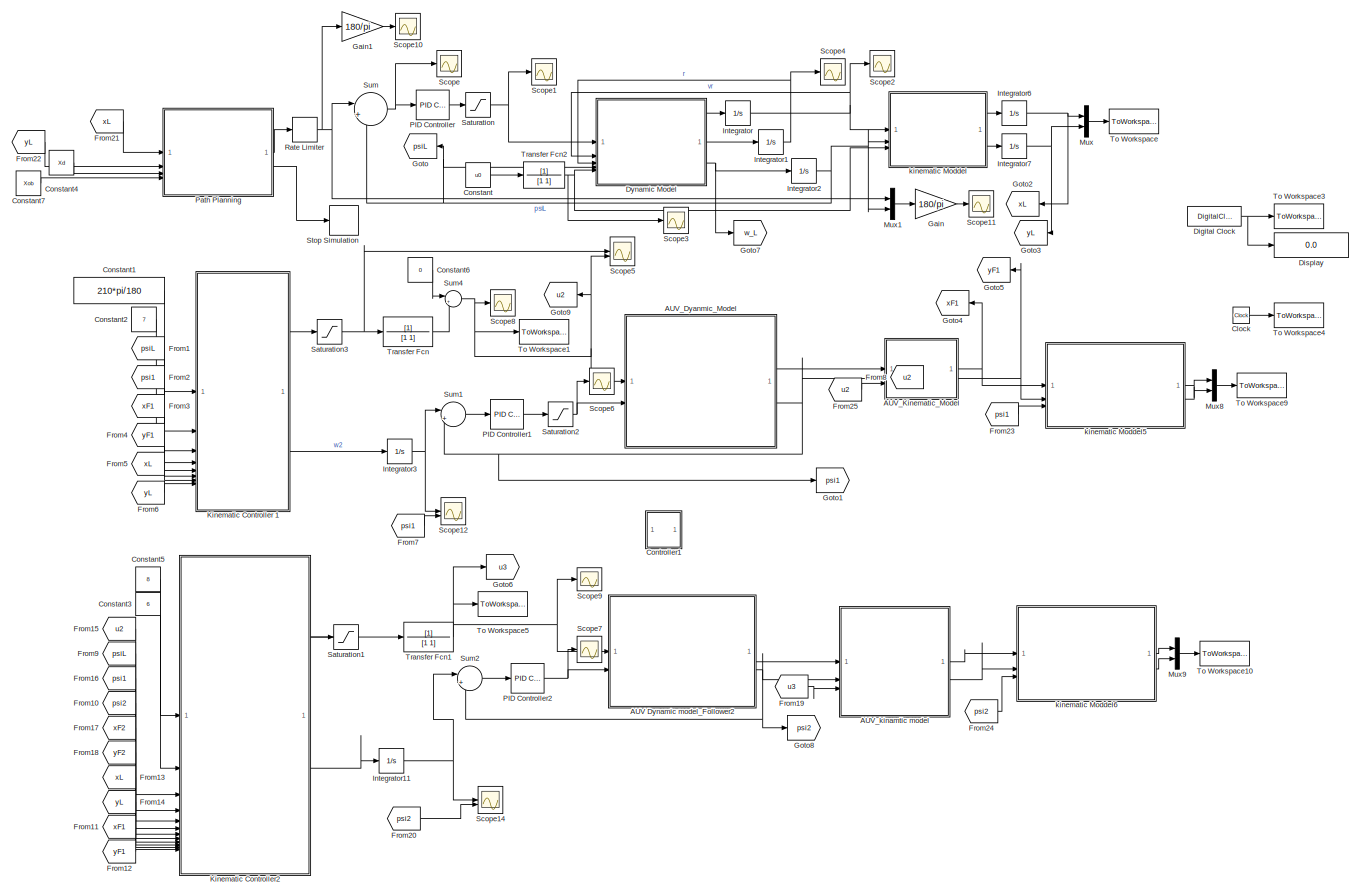
[diagram: root canvas - part 1/1, most of the canvas]
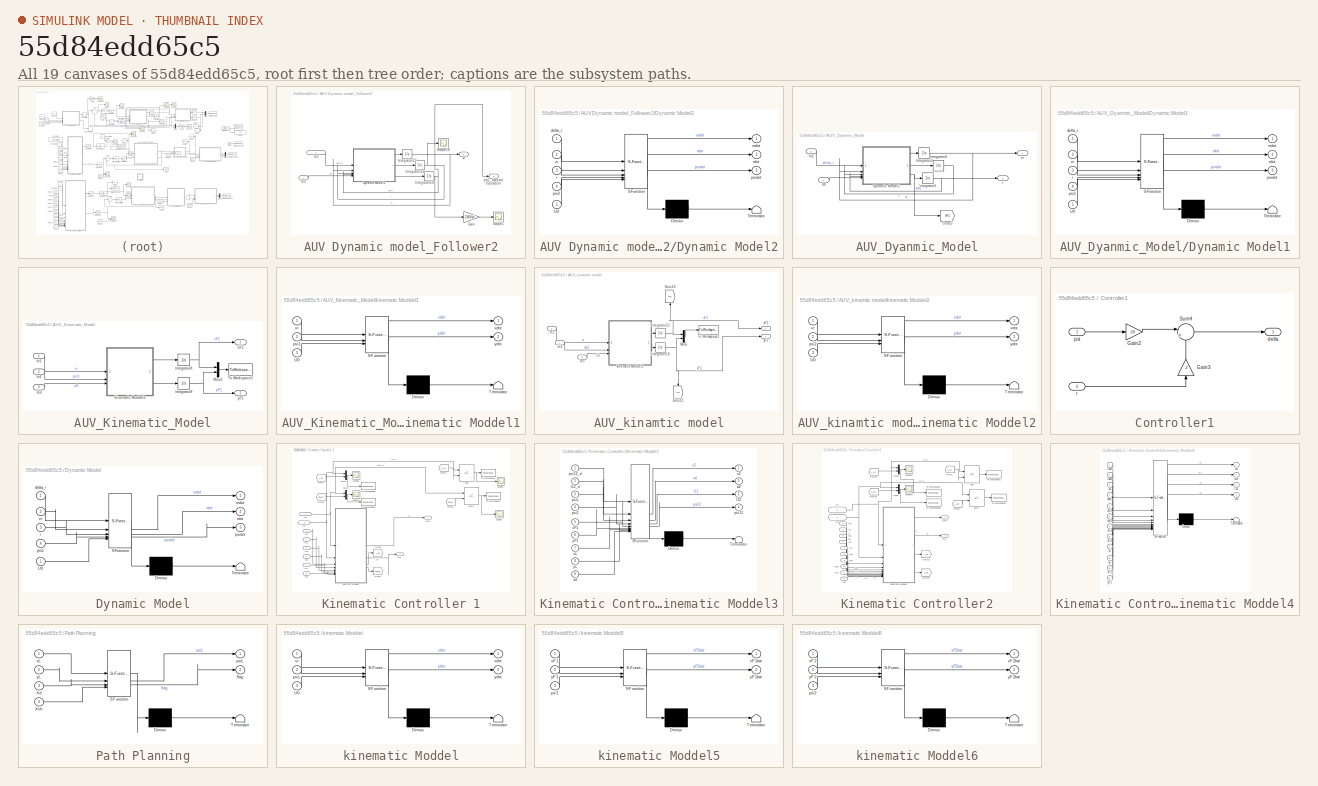
[diagram: thumbnail index - all 19 canvases of the model, root first then tree order]
MODEL slx_55d84edd65c5
KIND model
CONFIG AbsTol = auto
CONFIG EnableMultiTasking = off
CONFIG FixedStep = dt
CONFIG MaxStep = auto
CONFIG MinStep = auto
CONFIG RelTol = 1e-3
CONFIG SampleTimeConstraint = Unconstrained
CONFIG SolverName = FixedStepAuto
CONFIG StartTime = 0.0
CONFIG StopTime = Sim_Time
BLOCK [SubSystem] AUV Dynamic model_Follower2
BLOCK [SubSystem] AUV Dynamic model_Follower2/Dynamic Model2
  ErrorFcn = Stateflow.Translate.translate
  PermitHierarchicalResolution = ExplicitOnly
  SFBlockType = MATLAB Function
  TreatAsAtomicUnit = on
BLOCK [Demux] AUV Dynamic model_Follower2/Dynamic Model2/ Demux 
  Outputs = 1
BLOCK [S-Function] AUV Dynamic model_Follower2/Dynamic Model2/ SFunction 
  EnableBusSupport = on
  FunctionName = sf_sfun
  PortCounts = [5 4]
  SFcnIsStateOwnerBlock = off
  SFunctionDeploymentMode = off
  Tag = Stateflow S-Function 5
BLOCK [Terminator] AUV Dynamic model_Follower2/Dynamic Model2/ Terminator 
BLOCK [Inport] AUV Dynamic model_Follower2/Dynamic Model2/U0
  Port = 5
BLOCK [Inport] AUV Dynamic model_Follower2/Dynamic Model2/delta_r
BLOCK [Inport] AUV Dynamic model_Follower2/Dynamic Model2/psi2
  Port = 4
BLOCK [Outport] AUV Dynamic model_Follower2/Dynamic Model2/psidot
  Port = 3
  VectorParamsAs1DForOutWhenUnconnected = off
BLOCK [Inport] AUV Dynamic model_Follower2/Dynamic Model2/r
  Port = 3
BLOCK [Outport] AUV Dynamic model_Follower2/Dynamic Model2/rdot
  Port = 2
  VectorParamsAs1DForOutWhenUnconnected = off
BLOCK [Inport] AUV Dynamic model_Follower2/Dynamic Model2/vr
  Port = 2
BLOCK [Outport] AUV Dynamic model_Follower2/Dynamic Model2/vrdot
  VectorParamsAs1DForOutWhenUnconnected = off
BLOCK [Gain] AUV Dynamic model_Follower2/Gain
  Gain = 180/pi
BLOCK [Inport] AUV Dynamic model_Follower2/In1
  IconDisplay = Signal name
BLOCK [Inport] AUV Dynamic model_Follower2/In2
  IconDisplay = Signal name
  Port = 2
BLOCK [Integrator] AUV Dynamic model_Follower2/Integrator12
BLOCK [Integrator] AUV Dynamic model_Follower2/Integrator13
BLOCK [Integrator] AUV Dynamic model_Follower2/Integrator14
  InitialCondition = pi/6
BLOCK [Scope] AUV Dynamic model_Follower2/Scope1
  Floating = off
  NumInputPorts = 1
  ScopeSpecificationString = Simulink.scopes.TimeScopeBlockCfg('CurrentConfiguration', extmgr.ConfigurationSet(extmgr.Configuration('Core','General UI',true),extmgr.Configuration('Core','Source UI',true),extmgr.Configuration('Sources','WiredSimulink',true,'DataLoggingVariableName','ScopeData2'),extmgr.Configuration('Visuals','Time Domain',true,'SerializedDisplays',{struct('MinYLimReal','-16.04175','MaxYLimReal','150.67345','Y...<+1421ch>
BLOCK [Scope] AUV Dynamic model_Follower2/Scope18
  Floating = off
  NumInputPorts = 1
  ScopeSpecificationString = Simulink.scopes.TimeScopeBlockCfg('CurrentConfiguration', extmgr.ConfigurationSet(extmgr.Configuration('Core','General UI',true),extmgr.Configuration('Core','Source UI',true),extmgr.Configuration('Sources','WiredSimulink',true,'DataLoggingVariableName','ScopeData18'),extmgr.Configuration('Visuals','Time Domain',true,'SerializedDisplays',{struct('MinYLimReal','-0.52967','MaxYLimReal','1.13115','YLa...<+1361ch>
BLOCK [Outport] AUV Dynamic model_Follower2/psi2_dynamic equaction
  IconDisplay = Signal name
  Port = 2
  VectorParamsAs1DForOutWhenUnconnected = off
BLOCK [Outport] AUV Dynamic model_Follower2/vr
  IconDisplay = Signal name
  VectorParamsAs1DForOutWhenUnconnected = off
BLOCK [SubSystem] AUV_Dyanmic_Model
BLOCK [SubSystem] AUV_Dyanmic_Model/Dynamic Model1
  ErrorFcn = Stateflow.Translate.translate
  PermitHierarchicalResolution = ExplicitOnly
  SFBlockType = MATLAB Function
  TreatAsAtomicUnit = on
BLOCK [Demux] AUV_Dyanmic_Model/Dynamic Model1/ Demux 
  Outputs = 1
BLOCK [S-Function] AUV_Dyanmic_Model/Dynamic Model1/ SFunction 
  EnableBusSupport = on
  FunctionName = sf_sfun
  PortCounts = [5 4]
  SFcnIsStateOwnerBlock = off
  SFunctionDeploymentMode = off
  Tag = Stateflow S-Function 3
BLOCK [Terminator] AUV_Dyanmic_Model/Dynamic Model1/ Terminator 
BLOCK [Inport] AUV_Dyanmic_Model/Dynamic Model1/U0
  Port = 5
BLOCK [Inport] AUV_Dyanmic_Model/Dynamic Model1/delta_r
BLOCK [Inport] AUV_Dyanmic_Model/Dynamic Model1/psi1
  Port = 4
BLOCK [Outport] AUV_Dyanmic_Model/Dynamic Model1/psidot
  Port = 3
  VectorParamsAs1DForOutWhenUnconnected = off
BLOCK [Inport] AUV_Dyanmic_Model/Dynamic Model1/r
  Port = 3
BLOCK [Outport] AUV_Dyanmic_Model/Dynamic Model1/rdot
  Port = 2
  VectorParamsAs1DForOutWhenUnconnected = off
BLOCK [Inport] AUV_Dyanmic_Model/Dynamic Model1/vr
  Port = 2
BLOCK [Outport] AUV_Dyanmic_Model/Dynamic Model1/vrdot
  VectorParamsAs1DForOutWhenUnconnected = off
BLOCK [Goto] AUV_Dyanmic_Model/Goto5
  GotoTag = rF1
  NameLocation = top
  TagVisibility = global
BLOCK [Inport] AUV_Dyanmic_Model/In2
  IconDisplay = Signal name
  Port = 2
BLOCK [Integrator] AUV_Dyanmic_Model/Integrator3
BLOCK [Integrator] AUV_Dyanmic_Model/Integrator4
BLOCK [Integrator] AUV_Dyanmic_Model/Integrator5
BLOCK [Inport] AUV_Dyanmic_Model/U0
BLOCK [Outport] AUV_Dyanmic_Model/r
  IconDisplay = Signal name
  Port = 2
  VectorParamsAs1DForOutWhenUnconnected = off
BLOCK [Outport] AUV_Dyanmic_Model/vr
  VectorParamsAs1DForOutWhenUnconnected = off
BLOCK [SubSystem] AUV_Kinematic_Model
BLOCK [Inport] AUV_Kinematic_Model/In1
  IconDisplay = Signal name
BLOCK [Inport] AUV_Kinematic_Model/In2
  IconDisplay = Signal name
  Port = 2
BLOCK [Inport] AUV_Kinematic_Model/In3
  IconDisplay = Signal name
  Port = 3
BLOCK [Integrator] AUV_Kinematic_Model/Integrator8
  InitialCondition = 7
BLOCK [Integrator] AUV_Kinematic_Model/Integrator9
  InitialCondition = 2
BLOCK [Mux] AUV_Kinematic_Model/Mux2
  DisplayOption = bar
  Inputs = 2
BLOCK [ToWorkspace] AUV_Kinematic_Model/To Workspace1
  FixptAsFi = on
  MaxDataPoints = inf
  SampleTime = -1
  VariableName = Follower1
BLOCK [SubSystem] AUV_Kinematic_Model/kinematic Moddel1
  ErrorFcn = Stateflow.Translate.translate
  PermitHierarchicalResolution = ExplicitOnly
  SFBlockType = MATLAB Function
  TreatAsAtomicUnit = on
BLOCK [Demux] AUV_Kinematic_Model/kinematic Moddel1/ Demux 
  Outputs = 1
BLOCK [S-Function] AUV_Kinematic_Model/kinematic Moddel1/ SFunction 
  EnableBusSupport = on
  FunctionName = sf_sfun
  PortCounts = [3 3]
  SFcnIsStateOwnerBlock = off
  SFunctionDeploymentMode = off
  Tag = Stateflow S-Function 4
BLOCK [Terminator] AUV_Kinematic_Model/kinematic Moddel1/ Terminator 
BLOCK [Inport] AUV_Kinematic_Model/kinematic Moddel1/U0
  Port = 3
BLOCK [Inport] AUV_Kinematic_Model/kinematic Moddel1/psi1
  Port = 2
BLOCK [Inport] AUV_Kinematic_Model/kinematic Moddel1/vr
BLOCK [Outport] AUV_Kinematic_Model/kinematic Moddel1/xdot
  VectorParamsAs1DForOutWhenUnconnected = off
BLOCK [Outport] AUV_Kinematic_Model/kinematic Moddel1/ydot
  Port = 2
  VectorParamsAs1DForOutWhenUnconnected = off
BLOCK [Outport] AUV_Kinematic_Model/xF1
  VectorParamsAs1DForOutWhenUnconnected = off
BLOCK [Outport] AUV_Kinematic_Model/yF1
  Port = 2
  VectorParamsAs1DForOutWhenUnconnected = off
BLOCK [SubSystem] AUV_kinamtic model
BLOCK [Goto] AUV_kinamtic model/Goto10
  GotoTag = xF2
  NameLocation = left
  TagVisibility = global
BLOCK [Goto] AUV_kinamtic model/Goto11
  GotoTag = yF2
  NameLocation = right
  TagVisibility = global
BLOCK [Inport] AUV_kinamtic model/In1
  IconDisplay = Signal name
BLOCK [Inport] AUV_kinamtic model/In2
  IconDisplay = Signal name
  Port = 2
BLOCK [Inport] AUV_kinamtic model/In3
  IconDisplay = Signal name
  Port = 3
BLOCK [Integrator] AUV_kinamtic model/Integrator15
  InitialCondition = 2
BLOCK [Integrator] AUV_kinamtic model/Integrator16
  InitialCondition = 1
BLOCK [Mux] AUV_kinamtic model/Mux5
  DisplayOption = bar
  Inputs = 2
BLOCK [ToWorkspace] AUV_kinamtic model/To Workspace2
  FixptAsFi = on
  MaxDataPoints = inf
  SampleTime = -1
  VariableName = Follower2
BLOCK [SubSystem] AUV_kinamtic model/kinematic Moddel2
  ErrorFcn = Stateflow.Translate.translate
  PermitHierarchicalResolution = ExplicitOnly
  SFBlockType = MATLAB Function
  TreatAsAtomicUnit = on
BLOCK [Demux] AUV_kinamtic model/kinematic Moddel2/ Demux 
  Outputs = 1
BLOCK [S-Function] AUV_kinamtic model/kinematic Moddel2/ SFunction 
  EnableBusSupport = on
  FunctionName = sf_sfun
  PortCounts = [3 3]
  SFcnIsStateOwnerBlock = off
  SFunctionDeploymentMode = off
  Tag = Stateflow S-Function 7
BLOCK [Terminator] AUV_kinamtic model/kinematic Moddel2/ Terminator 
BLOCK [Inport] AUV_kinamtic model/kinematic Moddel2/U0
  Port = 3
BLOCK [Inport] AUV_kinamtic model/kinematic Moddel2/psi2
  Port = 2
BLOCK [Inport] AUV_kinamtic model/kinematic Moddel2/vr
BLOCK [Outport] AUV_kinamtic model/kinematic Moddel2/xdot
  VectorParamsAs1DForOutWhenUnconnected = off
BLOCK [Outport] AUV_kinamtic model/kinematic Moddel2/ydot
  Port = 2
  VectorParamsAs1DForOutWhenUnconnected = off
BLOCK [Outport] AUV_kinamtic model/xF2
  VectorParamsAs1DForOutWhenUnconnected = off
BLOCK [Outport] AUV_kinamtic model/yF2
  Port = 2
  VectorParamsAs1DForOutWhenUnconnected = off
BLOCK [Clock] Clock
BLOCK [Constant] Constant
  Value = u0
BLOCK [Constant] Constant1
  Value = 210*pi/180
BLOCK [Constant] Constant2
  Value = 7
BLOCK [Constant] Constant3
  Value = 6
BLOCK [Constant] Constant4
  Value = Xd
BLOCK [Constant] Constant5
  Value = 8
BLOCK [Constant] Constant6
  Value = 0
BLOCK [Constant] Constant7
  Value = Xob
BLOCK [SubSystem] Controller1
BLOCK [Gain] Controller1/Gain2
  Gain = -10
BLOCK [Gain] Controller1/Gain3
  Gain = -2
  NameLocation = right
BLOCK [Sum] Controller1/Sum4
  Inputs = |+-
BLOCK [Outport] Controller1/delta
BLOCK [Inport] Controller1/psi
BLOCK [Inport] Controller1/r
  Port = 2
BLOCK [DigitalClock] Digital Clock
BLOCK [Display] Display
  Decimation = 1
BLOCK [SubSystem] Dynamic Model
  ErrorFcn = Stateflow.Translate.translate
  PermitHierarchicalResolution = ExplicitOnly
  SFBlockType = MATLAB Function
  TreatAsAtomicUnit = on
BLOCK [Demux] Dynamic Model/ Demux 
  Outputs = 1
BLOCK [S-Function] Dynamic Model/ SFunction 
  EnableBusSupport = on
  FunctionName = sf_sfun
  PortCounts = [5 4]
  SFcnIsStateOwnerBlock = off
  SFunctionDeploymentMode = off
  Tag = Stateflow S-Function 2
BLOCK [Terminator] Dynamic Model/ Terminator 
BLOCK [Inport] Dynamic Model/U0
  Port = 5
BLOCK [Inport] Dynamic Model/delta_r
BLOCK [Inport] Dynamic Model/psiL
  Port = 4
BLOCK [Outport] Dynamic Model/psidot
  Port = 3
  VectorParamsAs1DForOutWhenUnconnected = off
BLOCK [Inport] Dynamic Model/r
  Port = 3
BLOCK [Outport] Dynamic Model/rdot
  Port = 2
  VectorParamsAs1DForOutWhenUnconnected = off
BLOCK [Inport] Dynamic Model/vr
  Port = 2
BLOCK [Outport] Dynamic Model/vrdot
  VectorParamsAs1DForOutWhenUnconnected = off
BLOCK [From] From1
  GotoTag = psiL
  TagVisibility = global
BLOCK [From] From10
  GotoTag = psi2
  TagVisibility = global
BLOCK [From] From11
  GotoTag = xF1
  TagVisibility = global
BLOCK [From] From12
  GotoTag = yF1
  TagVisibility = global
BLOCK [From] From13
  GotoTag = xL
  TagVisibility = global
BLOCK [From] From14
  GotoTag = yL
  TagVisibility = global
BLOCK [From] From15
  GotoTag = u2
  TagVisibility = global
BLOCK [From] From16
  GotoTag = psi1
  TagVisibility = global
BLOCK [From] From17
  GotoTag = xF2
  TagVisibility = global
BLOCK [From] From18
  GotoTag = yF2
  TagVisibility = global
BLOCK [From] From19
  GotoTag = u3
  TagVisibility = global
BLOCK [From] From2
  GotoTag = psi1
  TagVisibility = global
BLOCK [From] From20
  GotoTag = psi2
  TagVisibility = global
BLOCK [From] From21
  GotoTag = xL
  TagVisibility = global
BLOCK [From] From22
  GotoTag = yL
  TagVisibility = global
BLOCK [From] From23
  GotoTag = psi1
  TagVisibility = global
BLOCK [From] From24
  GotoTag = psi2
  TagVisibility = global
BLOCK [From] From25
  GotoTag = u2
  TagVisibility = global
BLOCK [From] From3
  GotoTag = xF1
  TagVisibility = global
BLOCK [From] From4
  GotoTag = yF1
  TagVisibility = global
BLOCK [From] From5
  GotoTag = xL
  TagVisibility = global
BLOCK [From] From6
  GotoTag = yL
  TagVisibility = global
BLOCK [From] From7
  GotoTag = psi1
  TagVisibility = global
BLOCK [From] From8
  GotoTag = u2
  TagVisibility = global
BLOCK [From] From9
  GotoTag = psiL
  TagVisibility = global
BLOCK [Gain] Gain
  Gain = 180/pi
BLOCK [Gain] Gain1
  Gain = 180/pi
BLOCK [Goto] Goto
  GotoTag = psiL
  TagVisibility = global
BLOCK [Goto] Goto1
  GotoTag = psi1
  TagVisibility = global
BLOCK [Goto] Goto2
  GotoTag = xL
  TagVisibility = global
BLOCK [Goto] Goto3
  GotoTag = yL
  TagVisibility = global
BLOCK [Goto] Goto4
  GotoTag = xF1
  TagVisibility = global
BLOCK [Goto] Goto5
  GotoTag = yF1
  TagVisibility = global
BLOCK [Goto] Goto6
  GotoTag = u3
  TagVisibility = global
BLOCK [Goto] Goto7
  GotoTag = w_L
  NameLocation = top
  TagVisibility = global
BLOCK [Goto] Goto8
  GotoTag = psi2
  TagVisibility = global
BLOCK [Goto] Goto9
  GotoTag = u2
  TagVisibility = global
BLOCK [Integrator] Integrator
BLOCK [Integrator] Integrator1
BLOCK [Integrator] Integrator11
BLOCK [Integrator] Integrator2
  InitialCondition = pi/6
BLOCK [Integrator] Integrator3
BLOCK [Integrator] Integrator6
  InitialCondition = 6
BLOCK [Integrator] Integrator7
  InitialCondition = 4
BLOCK [SubSystem] Kinematic Controller 1
BLOCK [From] Kinematic Controller 1/From1
  GotoTag = Psi_12
  TagVisibility = global
BLOCK [From] Kinematic Controller 1/From2
  GotoTag = L_12
  TagVisibility = global
BLOCK [From] Kinematic Controller 1/From7
  GotoTag = L_12
  TagVisibility = global
BLOCK [From] Kinematic Controller 1/From8
  GotoTag = Psi_12
  TagVisibility = global
BLOCK [Goto] Kinematic Controller 1/Goto6
  GotoTag = L_12
  TagVisibility = global
BLOCK [Goto] Kinematic Controller 1/Goto7
  GotoTag = Psi_12
  TagVisibility = global
BLOCK [Inport] Kinematic Controller 1/In1
  IconDisplay = Signal name
BLOCK [Inport] Kinematic Controller 1/In2
  IconDisplay = Signal name
  Port = 2
BLOCK [Inport] Kinematic Controller 1/In3
  Port = 3
BLOCK [Inport] Kinematic Controller 1/In4
  Port = 4
BLOCK [Inport] Kinematic Controller 1/In5
  Port = 5
BLOCK [Inport] Kinematic Controller 1/In6
  Port = 6
BLOCK [Inport] Kinematic Controller 1/In7
  Port = 7
BLOCK [Inport] Kinematic Controller 1/In8
  Port = 8
BLOCK [Mux] Kinematic Controller 1/Mux3
  DisplayOption = bar
  Inputs = 2
BLOCK [Mux] Kinematic Controller 1/Mux4
  DisplayOption = bar
  Inputs = 2
BLOCK [Outport] Kinematic Controller 1/Out1
  IconDisplay = Signal name
  VectorParamsAs1DForOutWhenUnconnected = off
BLOCK [Scope] Kinematic Controller 1/Scope1
  Floating = off
  NumInputPorts = 1
  ScopeSpecificationString = Simulink.scopes.TimeScopeBlockCfg('CurrentConfiguration', extmgr.ConfigurationSet(extmgr.Configuration('Core','General UI',true),extmgr.Configuration('Core','Source UI',true),extmgr.Configuration('Sources','WiredSimulink',true,'DataLoggingVariableName','ScopeData4'),extmgr.Configuration('Visuals','Time Domain',true,'SerializedDisplays',{struct('MinYLimReal','-22.54953','MaxYLimReal','7.71433','YLa...<+1366ch>
BLOCK [Scope] Kinematic Controller 1/Scope10
  Floating = off
  NumInputPorts = 1
  ScopeSpecificationString = Simulink.scopes.TimeScopeBlockCfg('CurrentConfiguration', extmgr.ConfigurationSet(extmgr.Configuration('Core','General UI',true),extmgr.Configuration('Core','Source UI',true),extmgr.Configuration('Sources','WiredSimulink',true,'DataLoggingVariableName','ScopeData6'),extmgr.Configuration('Visuals','Time Domain',true,'SerializedDisplays',{struct('MinYLimReal','1.99947','MaxYLimReal','5.01603','YLabe...<+1377ch>
BLOCK [Scope] Kinematic Controller 1/Scope2
  Floating = off
  NumInputPorts = 1
  ScopeSpecificationString = Simulink.scopes.TimeScopeBlockCfg('CurrentConfiguration', extmgr.ConfigurationSet(extmgr.Configuration('Core','General UI',true),extmgr.Configuration('Core','Source UI',true),extmgr.Configuration('Sources','WiredSimulink',true,'DataLoggingVariableName','ScopeData5'),extmgr.Configuration('Visuals','Time Domain',true,'SerializedDisplays',{struct('MinYLimReal','-1.41825','MaxYLimReal','2.2725','YLabe...<+1359ch>
BLOCK [Scope] Kinematic Controller 1/Scope8
  Floating = off
  NumInputPorts = 1
  ScopeSpecificationString = Simulink.scopes.TimeScopeBlockCfg('CurrentConfiguration', extmgr.ConfigurationSet(extmgr.Configuration('Core','General UI',true),extmgr.Configuration('Core','Source UI',true),extmgr.Configuration('Sources','WiredSimulink',true,'DataLoggingVariableName','ScopeData12'),extmgr.Configuration('Visuals','Time Domain',true,'SerializedDisplays',{struct('MinYLimReal','1.70586','MaxYLimReal','7.76783','YLab...<+1376ch>
BLOCK [Sum] Kinematic Controller 1/Sum
  IconShape = rectangular
  Inputs = +|-
BLOCK [Sum] Kinematic Controller 1/Sum1
  IconShape = rectangular
  Inputs = +|-
BLOCK [ToWorkspace] Kinematic Controller 1/To Workspace1
  FixptAsFi = on
  MaxDataPoints = inf
  SampleTime = -1
  VariableName = eF1_L12
BLOCK [ToWorkspace] Kinematic Controller 1/To Workspace2
  FixptAsFi = on
  MaxDataPoints = inf
  SampleTime = -1
  VariableName = eF1_psi12
BLOCK [ToWorkspace] Kinematic Controller 1/To Workspace5
  FixptAsFi = on
  MaxDataPoints = inf
  SampleTime = -1
  VariableName = L12
BLOCK [ToWorkspace] Kinematic Controller 1/To Workspace6
  FixptAsFi = on
  MaxDataPoints = inf
  SampleTime = -1
  VariableName = psi12
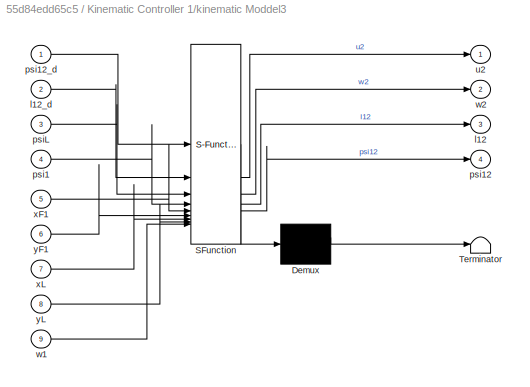
BLOCK [SubSystem] Kinematic Controller 1/kinematic Moddel3
  ErrorFcn = Stateflow.Translate.translate
  PermitHierarchicalResolution = ExplicitOnly
  SFBlockType = MATLAB Function
  TreatAsAtomicUnit = on
BLOCK [Demux] Kinematic Controller 1/kinematic Moddel3/ Demux 
  Outputs = 1
BLOCK [S-Function] Kinematic Controller 1/kinematic Moddel3/ SFunction 
  EnableBusSupport = on
  FunctionName = sf_sfun
  PortCounts = [9 5]
  SFcnIsStateOwnerBlock = off
  SFunctionDeploymentMode = off
  Tag = Stateflow S-Function 6
BLOCK [Terminator] Kinematic Controller 1/kinematic Moddel3/ Terminator 
BLOCK [Outport] Kinematic Controller 1/kinematic Moddel3/l12
  Port = 3
  VectorParamsAs1DForOutWhenUnconnected = off
BLOCK [Inport] Kinematic Controller 1/kinematic Moddel3/l12_d
  Port = 2
BLOCK [Inport] Kinematic Controller 1/kinematic Moddel3/psi1
  Port = 4
BLOCK [Outport] Kinematic Controller 1/kinematic Moddel3/psi12
  Port = 4
  VectorParamsAs1DForOutWhenUnconnected = off
BLOCK [Inport] Kinematic Controller 1/kinematic Moddel3/psi12_d
BLOCK [Inport] Kinematic Controller 1/kinematic Moddel3/psiL
  Port = 3
BLOCK [Outport] Kinematic Controller 1/kinematic Moddel3/u2
  VectorParamsAs1DForOutWhenUnconnected = off
BLOCK [Inport] Kinematic Controller 1/kinematic Moddel3/w1
  Port = 9
BLOCK [Outport] Kinematic Controller 1/kinematic Moddel3/w2
  Port = 2
  VectorParamsAs1DForOutWhenUnconnected = off
BLOCK [Inport] Kinematic Controller 1/kinematic Moddel3/xF1
  Port = 5
BLOCK [Inport] Kinematic Controller 1/kinematic Moddel3/xL
  Port = 7
BLOCK [Inport] Kinematic Controller 1/kinematic Moddel3/yF1
  Port = 6
BLOCK [Inport] Kinematic Controller 1/kinematic Moddel3/yL
  Port = 8
BLOCK [Outport] Kinematic Controller 1/w2
  Port = 2
  VectorParamsAs1DForOutWhenUnconnected = off
BLOCK [SubSystem] Kinematic Controller2
BLOCK [From] Kinematic Controller2/From1
  GotoTag = L_23
BLOCK [From] Kinematic Controller2/From19
  GotoTag = L_13
BLOCK [From] Kinematic Controller2/From2
  GotoTag = L_13
BLOCK [From] Kinematic Controller2/From20
  GotoTag = L_23
BLOCK [Goto] Kinematic Controller2/Goto12
  GotoTag = L_13
BLOCK [Goto] Kinematic Controller2/Goto13
  GotoTag = L_23
BLOCK [Inport] Kinematic Controller2/In1
  IconDisplay = Signal name
  Port = 2
BLOCK [Inport] Kinematic Controller2/In10
  IconDisplay = Signal name
  Port = 10
BLOCK [Inport] Kinematic Controller2/In11
  IconDisplay = Signal name
  Port = 11
BLOCK [Inport] Kinematic Controller2/In12
  IconDisplay = Signal name
  Port = 12
BLOCK [Inport] Kinematic Controller2/In2
  IconDisplay = Signal name
BLOCK [Inport] Kinematic Controller2/In3
  IconDisplay = Signal name
  Port = 3
BLOCK [Inport] Kinematic Controller2/In4
  IconDisplay = Signal name
  Port = 4
BLOCK [Inport] Kinematic Controller2/In5
  IconDisplay = Signal name
  Port = 5
BLOCK [Inport] Kinematic Controller2/In6
  IconDisplay = Signal name
  Port = 6
BLOCK [Inport] Kinematic Controller2/In7
  IconDisplay = Signal name
  Port = 7
BLOCK [Inport] Kinematic Controller2/In8
  IconDisplay = Signal name
  Port = 8
BLOCK [Inport] Kinematic Controller2/In9
  IconDisplay = Signal name
  Port = 9
BLOCK [Mux] Kinematic Controller2/Mux6
  DisplayOption = bar
  Inputs = 2
BLOCK [Mux] Kinematic Controller2/Mux7
  DisplayOption = bar
  Inputs = 2
BLOCK [Outport] Kinematic Controller2/Out1
  IconDisplay = Signal name
  VectorParamsAs1DForOutWhenUnconnected = off
BLOCK [Scope] Kinematic Controller2/Scope19
  Floating = off
  NumInputPorts = 1
  ScopeSpecificationString = Simulink.scopes.TimeScopeBlockCfg('CurrentConfiguration', extmgr.ConfigurationSet(extmgr.Configuration('Core','General UI',true),extmgr.Configuration('Core','Source UI',true),extmgr.Configuration('Sources','WiredSimulink',true,'DataLoggingVariableName','ScopeData19'),extmgr.Configuration('Visuals','Time Domain',true,'SerializedDisplays',{struct('MinYLimReal','4.56619','MaxYLimReal','8.38153','YLab...<+1376ch>
BLOCK [Scope] Kinematic Controller2/Scope20
  Floating = off
  NumInputPorts = 1
  ScopeSpecificationString = Simulink.scopes.TimeScopeBlockCfg('CurrentConfiguration', extmgr.ConfigurationSet(extmgr.Configuration('Core','General UI',true),extmgr.Configuration('Core','Source UI',true),extmgr.Configuration('Sources','WiredSimulink',true),extmgr.Configuration('Visuals','Time Domain',true,'SerializedDisplays',{struct('MinYLimReal','4.67317','MaxYLimReal','6.35336','YLabelReal','','MinYLimMag','4.67317','MaxYL...<+1336ch>
BLOCK [Sum] Kinematic Controller2/Sum
  IconShape = rectangular
  Inputs = +|-
BLOCK [Sum] Kinematic Controller2/Sum1
  IconShape = rectangular
  Inputs = +|-
BLOCK [ToWorkspace] Kinematic Controller2/To Workspace1
  FixptAsFi = on
  MaxDataPoints = inf
  SampleTime = -1
  VariableName = eF2_L13
BLOCK [ToWorkspace] Kinematic Controller2/To Workspace2
  FixptAsFi = on
  MaxDataPoints = inf
  SampleTime = -1
  VariableName = eF2_L23
BLOCK [ToWorkspace] Kinematic Controller2/To Workspace7
  FixptAsFi = on
  MaxDataPoints = inf
  SampleTime = -1
  VariableName = L13
BLOCK [ToWorkspace] Kinematic Controller2/To Workspace8
  FixptAsFi = on
  MaxDataPoints = inf
  SampleTime = -1
  VariableName = L23
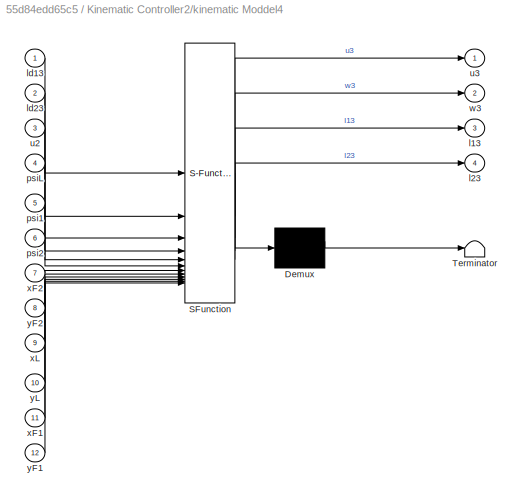
BLOCK [SubSystem] Kinematic Controller2/kinematic Moddel4
  ErrorFcn = Stateflow.Translate.translate
  PermitHierarchicalResolution = ExplicitOnly
  SFBlockType = MATLAB Function
  TreatAsAtomicUnit = on
BLOCK [Demux] Kinematic Controller2/kinematic Moddel4/ Demux 
  Outputs = 1
BLOCK [S-Function] Kinematic Controller2/kinematic Moddel4/ SFunction 
  EnableBusSupport = on
  FunctionName = sf_sfun
  PortCounts = [12 5]
  SFcnIsStateOwnerBlock = off
  SFunctionDeploymentMode = off
  Tag = Stateflow S-Function 8
BLOCK [Terminator] Kinematic Controller2/kinematic Moddel4/ Terminator 
BLOCK [Outport] Kinematic Controller2/kinematic Moddel4/l13
  Port = 3
  VectorParamsAs1DForOutWhenUnconnected = off
BLOCK [Outport] Kinematic Controller2/kinematic Moddel4/l23
  Port = 4
  VectorParamsAs1DForOutWhenUnconnected = off
BLOCK [Inport] Kinematic Controller2/kinematic Moddel4/ld13
BLOCK [Inport] Kinematic Controller2/kinematic Moddel4/ld23
  Port = 2
BLOCK [Inport] Kinematic Controller2/kinematic Moddel4/psi1
  Port = 5
BLOCK [Inport] Kinematic Controller2/kinematic Moddel4/psi2
  Port = 6
BLOCK [Inport] Kinematic Controller2/kinematic Moddel4/psiL
  Port = 4
BLOCK [Inport] Kinematic Controller2/kinematic Moddel4/u2
  Port = 3
BLOCK [Outport] Kinematic Controller2/kinematic Moddel4/u3
  VectorParamsAs1DForOutWhenUnconnected = off
BLOCK [Outport] Kinematic Controller2/kinematic Moddel4/w3
  Port = 2
  VectorParamsAs1DForOutWhenUnconnected = off
BLOCK [Inport] Kinematic Controller2/kinematic Moddel4/xF1
  Port = 11
BLOCK [Inport] Kinematic Controller2/kinematic Moddel4/xF2
  Port = 7
BLOCK [Inport] Kinematic Controller2/kinematic Moddel4/xL
  Port = 9
BLOCK [Inport] Kinematic Controller2/kinematic Moddel4/yF1
  Port = 12
BLOCK [Inport] Kinematic Controller2/kinematic Moddel4/yF2
  Port = 8
BLOCK [Inport] Kinematic Controller2/kinematic Moddel4/yL
  Port = 10
BLOCK [Outport] Kinematic Controller2/w2
  IconDisplay = Signal name
  Port = 2
  VectorParamsAs1DForOutWhenUnconnected = off
BLOCK [Mux] Mux
  DisplayOption = bar
  Inputs = 2
BLOCK [Mux] Mux1
  DisplayOption = bar
  Inputs = 2
BLOCK [Mux] Mux8
  DisplayOption = bar
  Inputs = 2
BLOCK [Mux] Mux9
  DisplayOption = bar
  Inputs = 2
BLOCK [Reference] PID Controller  REF=slpidlib/PID Controller
  SourceBlock = slpidlib/PID Controller
  SourceType = PID 1dof
BLOCK [Reference] PID Controller1  REF=slpidlib/PID Controller
  SourceBlock = slpidlib/PID Controller
  SourceType = PID 1dof
BLOCK [Reference] PID Controller2  REF=slpidlib/PID Controller
  SourceBlock = slpidlib/PID Controller
  SourceType = PID 1dof
BLOCK [SubSystem] Path Planning
  ErrorFcn = Stateflow.Translate.translate
  PermitHierarchicalResolution = ExplicitOnly
  SFBlockType = MATLAB Function
  TreatAsAtomicUnit = on
BLOCK [Demux] Path Planning/ Demux 
  Outputs = 1
BLOCK [S-Function] Path Planning/ SFunction 
  EnableBusSupport = on
  FunctionName = sf_sfun
  PortCounts = [4 3]
  SFcnIsStateOwnerBlock = off
  SFunctionDeploymentMode = off
  Tag = Stateflow S-Function 9
BLOCK [Terminator] Path Planning/ Terminator 
BLOCK [Inport] Path Planning/Xd
  Port = 3
BLOCK [Inport] Path Planning/Xob
  Port = 4
BLOCK [Outport] Path Planning/flag
  Port = 2
  VectorParamsAs1DForOutWhenUnconnected = off
BLOCK [Outport] Path Planning/psiL
  VectorParamsAs1DForOutWhenUnconnected = off
BLOCK [Inport] Path Planning/xL
BLOCK [Inport] Path Planning/yL
  Port = 2
BLOCK [RateLimiter] Rate Limiter
  FallingSlewLimit = -psi_r_sat
  RisingSlewLimit = psi_r_sat
  SampleTimeMode = inherited
BLOCK [Saturate] Saturation
  LowerLimit = -delta_max
  UpperLimit = delta_max
BLOCK [Saturate] Saturation1
  LowerLimit = u_min
  UpperLimit = u_max
BLOCK [Saturate] Saturation2
  LowerLimit = -delta_max
  UpperLimit = delta_max
BLOCK [Saturate] Saturation3
  LowerLimit = u_min
  UpperLimit = u_max
BLOCK [Scope] Scope
  Floating = off
  NumInputPorts = 1
  ScopeSpecificationString = Simulink.scopes.TimeScopeBlockCfg('CurrentConfiguration', extmgr.ConfigurationSet(extmgr.Configuration('Core','General UI',true),extmgr.Configuration('Core','Source UI',true),extmgr.Configuration('Sources','WiredSimulink',true,'DataLoggingVariableName','ScopeData1'),extmgr.Configuration('Visuals','Time Domain',true,'SerializedDisplays',{struct('MinYLimReal','-0.57225','MaxYLimReal','0.51232','YLab...<+1362ch>
BLOCK [Scope] Scope1
  Floating = off
  NumInputPorts = 1
  ScopeSpecificationString = Simulink.scopes.TimeScopeBlockCfg('CurrentConfiguration', extmgr.ConfigurationSet(extmgr.Configuration('Core','General UI',true),extmgr.Configuration('Core','Source UI',true),extmgr.Configuration('Sources','WiredSimulink',true,'DataLoggingVariableName','ScopeData2'),extmgr.Configuration('Visuals','Time Domain',true,'SerializedDisplays',{struct('MinYLimReal','-2.07181','MaxYLimReal','1.50681','YLab...<+1468ch>
BLOCK [Scope] Scope10
  Floating = off
  NumInputPorts = 1
  ScopeSpecificationString = Simulink.scopes.TimeScopeBlockCfg('CurrentConfiguration', extmgr.ConfigurationSet(extmgr.Configuration('Core','General UI',true),extmgr.Configuration('Core','Source UI',true),extmgr.Configuration('Sources','WiredSimulink',true,'DataLoggingVariableName','ScopeData1'),extmgr.Configuration('Visuals','Time Domain',true,'SerializedDisplays',{struct('MinYLimReal','-27.32546','MaxYLimReal','157.5606','YL...<+1420ch>
BLOCK [Scope] Scope11
  Floating = off
  NumInputPorts = 1
  ScopeSpecificationString = Simulink.scopes.TimeScopeBlockCfg('CurrentConfiguration', extmgr.ConfigurationSet(extmgr.Configuration('Core','General UI',true),extmgr.Configuration('Core','Source UI',true),extmgr.Configuration('Sources','WiredSimulink',true,'DataLoggingVariableName','ScopeData3'),extmgr.Configuration('Visuals','Time Domain',true,'SerializedDisplays',{struct('MinYLimReal','-16.04175','MaxYLimReal','150.67345','Y...<+1432ch>
BLOCK [Scope] Scope12
  Floating = off
  NumInputPorts = 2
  ScopeSpecificationString = Simulink.scopes.TimeScopeBlockCfg('CurrentConfiguration', extmgr.ConfigurationSet(extmgr.Configuration('Core','General UI',true),extmgr.Configuration('Core','Source UI',true),extmgr.Configuration('Sources','WiredSimulink',true,'DataLoggingVariableName','Scope8','DataLogging',true,'DataLoggingSaveFormat','StructureWithTime'),extmgr.Configuration('Visuals','Time Domain',true,'SerializedDisplays',{st...<+1496ch>
BLOCK [Scope] Scope14
  Floating = off
  NumInputPorts = 2
  ScopeSpecificationString = Simulink.scopes.TimeScopeBlockCfg('CurrentConfiguration', extmgr.ConfigurationSet(extmgr.Configuration('Core','General UI',true),extmgr.Configuration('Core','Source UI',true),extmgr.Configuration('Sources','WiredSimulink',true,'DataLoggingVariableName','Scope15','DataLogging',true,'DataLoggingSaveFormat','StructureWithTime'),extmgr.Configuration('Visuals','Time Domain',true,'SerializedDisplays',{s...<+1531ch>
BLOCK [Scope] Scope2
  Floating = off
  NumInputPorts = 1
  ScopeSpecificationString = Simulink.scopes.TimeScopeBlockCfg('CurrentConfiguration', extmgr.ConfigurationSet(extmgr.Configuration('Core','General UI',true),extmgr.Configuration('Core','Source UI',true),extmgr.Configuration('Sources','WiredSimulink',true,'DataLoggingVariableName','ScopeData3'),extmgr.Configuration('Visuals','Time Domain',true,'SerializedDisplays',{struct('MinYLimReal','-0.60809','MaxYLimReal','0.22553','YLab...<+1361ch>
BLOCK [Scope] Scope3
  Floating = off
  NumInputPorts = 1
  ScopeSpecificationString = Simulink.scopes.TimeScopeBlockCfg('CurrentConfiguration', extmgr.ConfigurationSet(extmgr.Configuration('Core','General UI',true),extmgr.Configuration('Core','Source UI',true),extmgr.Configuration('Sources','WiredSimulink',true,'DataLoggingVariableName','ScopeData1'),extmgr.Configuration('Visuals','Time Domain',true,'SerializedDisplays',{struct('MinYLimReal','-0.125','MaxYLimReal','1.125','YLabelRe...<+1395ch>
BLOCK [Scope] Scope4
  Floating = off
  NumInputPorts = 1
  ScopeSpecificationString = Simulink.scopes.TimeScopeBlockCfg('CurrentConfiguration', extmgr.ConfigurationSet(extmgr.Configuration('Core','General UI',true),extmgr.Configuration('Core','Source UI',true),extmgr.Configuration('Sources','WiredSimulink',true,'DataLoggingVariableName','ScopeData5'),extmgr.Configuration('Visuals','Time Domain',true,'SerializedDisplays',{struct('MinYLimReal','-0.80028','MaxYLimReal','1.37709','YLab...<+1360ch>
BLOCK [Scope] Scope5
  Floating = off
  NumInputPorts = 2
  ScopeSpecificationString = Simulink.scopes.TimeScopeBlockCfg('CurrentConfiguration', extmgr.ConfigurationSet(extmgr.Configuration('Core','General UI',true),extmgr.Configuration('Core','Source UI',true),extmgr.Configuration('Sources','WiredSimulink',true,'DataLoggingVariableName','ScopeData9'),extmgr.Configuration('Visuals','Time Domain',true,'SerializedDisplays',{struct('MinYLimReal','-0.13552','MaxYLimReal','1.21969','YLab...<+1402ch>
BLOCK [Scope] Scope6
  Floating = off
  NumInputPorts = 1
  ScopeSpecificationString = Simulink.scopes.TimeScopeBlockCfg('CurrentConfiguration', extmgr.ConfigurationSet(extmgr.Configuration('Core','General UI',true),extmgr.Configuration('Core','Source UI',true),extmgr.Configuration('Sources','WiredSimulink',true,'DataLoggingVariableName','ScopeData1'),extmgr.Configuration('Visuals','Time Domain',true,'SerializedDisplays',{struct('MinYLimReal','-2.2872','MaxYLimReal','9.32818','YLabe...<+1440ch>
BLOCK [Scope] Scope7
  Floating = off
  NumInputPorts = 1
  ScopeSpecificationString = Simulink.scopes.TimeScopeBlockCfg('CurrentConfiguration', extmgr.ConfigurationSet(extmgr.Configuration('Core','General UI',true),extmgr.Configuration('Core','Source UI',true),extmgr.Configuration('Sources','WiredSimulink',true,'DataLoggingVariableName','ScopeData2'),extmgr.Configuration('Visuals','Time Domain',true,'SerializedDisplays',{struct('MinYLimReal','-97.93157','MaxYLimReal','376.65768','Y...<+1457ch>
BLOCK [Scope] Scope8
  Floating = off
  NumInputPorts = 1
  ScopeSpecificationString = Simulink.scopes.TimeScopeBlockCfg('CurrentConfiguration', extmgr.ConfigurationSet(extmgr.Configuration('Core','General UI',true),extmgr.Configuration('Core','Source UI',true),extmgr.Configuration('Sources','WiredSimulink',true,'DataLoggingVariableName','ScopeData2'),extmgr.Configuration('Visuals','Time Domain',true,'SerializedDisplays',{struct('MinYLimReal','-0.13329','MaxYLimReal','1.19965','YLab...<+1363ch>
BLOCK [Scope] Scope9
  Floating = off
  NumInputPorts = 1
  ScopeSpecificationString = Simulink.scopes.TimeScopeBlockCfg('CurrentConfiguration', extmgr.ConfigurationSet(extmgr.Configuration('Core','General UI',true),extmgr.Configuration('Core','Source UI',true),extmgr.Configuration('Sources','WiredSimulink',true,'DataLoggingVariableName','ScopeData3'),extmgr.Configuration('Visuals','Time Domain',true,'SerializedDisplays',{struct('MinYLimReal','-0.17005','MaxYLimReal','1.53043','YLab...<+1424ch>
BLOCK [Stop] Stop Simulation
BLOCK [Sum] Sum
  Inputs = |+-
BLOCK [Sum] Sum1
  Inputs = |+-
BLOCK [Sum] Sum2
  Inputs = |+-
BLOCK [Sum] Sum4
  Inputs = |++
BLOCK [ToWorkspace] To Workspace
  FixptAsFi = on
  MaxDataPoints = inf
  SampleTime = -1
  VariableName = Leader
BLOCK [ToWorkspace] To Workspace1
  FixptAsFi = on
  MaxDataPoints = inf
  SampleTime = -1
  VariableName = u2_1
BLOCK [ToWorkspace] To Workspace10
  FixptAsFi = on
  MaxDataPoints = inf
  SampleTime = -1
  VariableName = PF2_bar
BLOCK [ToWorkspace] To Workspace3
  FixptAsFi = on
  MaxDataPoints = inf
  SampleTime = -1
  VariableName = iteration
BLOCK [ToWorkspace] To Workspace4
  FixptAsFi = on
  MaxDataPoints = inf
  SampleTime = -1
  VariableName = t
BLOCK [ToWorkspace] To Workspace5
  FixptAsFi = on
  MaxDataPoints = inf
  SampleTime = -1
  VariableName = u3_1
BLOCK [ToWorkspace] To Workspace9
  FixptAsFi = on
  MaxDataPoints = inf
  SampleTime = -1
  VariableName = PF1_bar
BLOCK [TransferFcn] Transfer Fcn
  Denominator = [1 1]
BLOCK [TransferFcn] Transfer Fcn1
  Denominator = [1 1]
BLOCK [TransferFcn] Transfer Fcn2
  Denominator = [1 1]
BLOCK [SubSystem] kinematic Moddel
  ErrorFcn = Stateflow.Translate.translate
  PermitHierarchicalResolution = ExplicitOnly
  SFBlockType = MATLAB Function
  TreatAsAtomicUnit = on
BLOCK [Demux] kinematic Moddel/ Demux 
  Outputs = 1
BLOCK [S-Function] kinematic Moddel/ SFunction 
  EnableBusSupport = on
  FunctionName = sf_sfun
  PortCounts = [3 3]
  SFcnIsStateOwnerBlock = off
  SFunctionDeploymentMode = off
  Tag = Stateflow S-Function 1
BLOCK [Terminator] kinematic Moddel/ Terminator 
BLOCK [Inport] kinematic Moddel/U0
  Port = 3
BLOCK [Inport] kinematic Moddel/psiL
  Port = 2
BLOCK [Inport] kinematic Moddel/vr
BLOCK [Outport] kinematic Moddel/xdot
  VectorParamsAs1DForOutWhenUnconnected = off
BLOCK [Outport] kinematic Moddel/ydot
  Port = 2
  VectorParamsAs1DForOutWhenUnconnected = off
BLOCK [SubSystem] kinematic Moddel5
  ErrorFcn = Stateflow.Translate.translate
  PermitHierarchicalResolution = ExplicitOnly
  SFBlockType = MATLAB Function
  TreatAsAtomicUnit = on
BLOCK [Demux] kinematic Moddel5/ Demux 
  Outputs = 1
BLOCK [S-Function] kinematic Moddel5/ SFunction 
  EnableBusSupport = on
  FunctionName = sf_sfun
  PortCounts = [3 3]
  SFcnIsStateOwnerBlock = off
  SFunctionDeploymentMode = off
  Tag = Stateflow S-Function 10
BLOCK [Terminator] kinematic Moddel5/ Terminator 
BLOCK [Inport] kinematic Moddel5/psi1
  Port = 3
BLOCK [Inport] kinematic Moddel5/xF1
BLOCK [Outport] kinematic Moddel5/xF1bar
  VectorParamsAs1DForOutWhenUnconnected = off
BLOCK [Inport] kinematic Moddel5/yF1
  Port = 2
BLOCK [Outport] kinematic Moddel5/yF1bar
  Port = 2
  VectorParamsAs1DForOutWhenUnconnected = off
BLOCK [SubSystem] kinematic Moddel6
  ErrorFcn = Stateflow.Translate.translate
  PermitHierarchicalResolution = ExplicitOnly
  SFBlockType = MATLAB Function
  TreatAsAtomicUnit = on
BLOCK [Demux] kinematic Moddel6/ Demux 
  Outputs = 1
BLOCK [S-Function] kinematic Moddel6/ SFunction 
  EnableBusSupport = on
  FunctionName = sf_sfun
  PortCounts = [3 3]
  SFcnIsStateOwnerBlock = off
  SFunctionDeploymentMode = off
  Tag = Stateflow S-Function 11
BLOCK [Terminator] kinematic Moddel6/ Terminator 
BLOCK [Inport] kinematic Moddel6/psi2
  Port = 3
BLOCK [Inport] kinematic Moddel6/xF2
BLOCK [Outport] kinematic Moddel6/xF2bar
  VectorParamsAs1DForOutWhenUnconnected = off
BLOCK [Inport] kinematic Moddel6/yF2
  Port = 2
BLOCK [Outport] kinematic Moddel6/yF2bar
  Port = 2
  VectorParamsAs1DForOutWhenUnconnected = off
LINE AUV Dynamic model_Follower2/Dynamic Model2:1 -> AUV Dynamic model_Follower2/Integrator12:1
LINE AUV Dynamic model_Follower2/Dynamic Model2:2 -> AUV Dynamic model_Follower2/Integrator13:1
LINE AUV Dynamic model_Follower2/Dynamic Model2:3 -> AUV Dynamic model_Follower2/Integrator14:1
LINE AUV Dynamic model_Follower2/Gain:1 -> AUV Dynamic model_Follower2/Scope1:1
LINE AUV Dynamic model_Follower2/In1:1 -> AUV Dynamic model_Follower2/Dynamic Model2:5
LINE AUV Dynamic model_Follower2/In2:1 -> AUV Dynamic model_Follower2/Dynamic Model2:1
NET AUV Dynamic model_Follower2/Integrator12:1 -> AUV Dynamic model_Follower2/Dynamic Model2:2, AUV Dynamic model_Follower2/vr:1
NET AUV Dynamic model_Follower2/Integrator13:1 -> AUV Dynamic model_Follower2/Dynamic Model2:3, AUV Dynamic model_Follower2/Scope18:1
NET AUV Dynamic model_Follower2/Integrator14:1 -> AUV Dynamic model_Follower2/Dynamic Model2:4, AUV Dynamic model_Follower2/Gain:1, AUV Dynamic model_Follower2/psi2_dynamic equaction:1
LINE AUV Dynamic model_Follower2:1 -> AUV_kinamtic model:1
NET AUV Dynamic model_Follower2:2 -> AUV_kinamtic model:2, Goto8:1, Sum2:2
LINE AUV_Dyanmic_Model/Dynamic Model1:1 -> AUV_Dyanmic_Model/Integrator3:1
LINE AUV_Dyanmic_Model/Dynamic Model1:2 -> AUV_Dyanmic_Model/Integrator4:1
NET AUV_Dyanmic_Model/Dynamic Model1:3 -> AUV_Dyanmic_Model/Goto5:1, AUV_Dyanmic_Model/Integrator5:1
LINE AUV_Dyanmic_Model/In2:1 -> AUV_Dyanmic_Model/Dynamic Model1:1
NET AUV_Dyanmic_Model/Integrator3:1 -> AUV_Dyanmic_Model/Dynamic Model1:2, AUV_Dyanmic_Model/vr:1
LINE AUV_Dyanmic_Model/Integrator4:1 -> AUV_Dyanmic_Model/Dynamic Model1:3
NET AUV_Dyanmic_Model/Integrator5:1 -> AUV_Dyanmic_Model/Dynamic Model1:4, AUV_Dyanmic_Model/r:1
LINE AUV_Dyanmic_Model/U0:1 -> AUV_Dyanmic_Model/Dynamic Model1:5
LINE AUV_Dyanmic_Model:1 -> AUV_Kinematic_Model:1
NET AUV_Dyanmic_Model:2 -> AUV_Kinematic_Model:2, Goto1:1, Sum1:2
LINE AUV_Kinematic_Model/In1:1 -> AUV_Kinematic_Model/kinematic Moddel1:1
LINE AUV_Kinematic_Model/In2:1 -> AUV_Kinematic_Model/kinematic Moddel1:2
LINE AUV_Kinematic_Model/In3:1 -> AUV_Kinematic_Model/kinematic Moddel1:3
NET AUV_Kinematic_Model/Integrator8:1 -> AUV_Kinematic_Model/Mux2:1, AUV_Kinematic_Model/xF1:1
NET AUV_Kinematic_Model/Integrator9:1 -> AUV_Kinematic_Model/Mux2:2, AUV_Kinematic_Model/yF1:1
LINE AUV_Kinematic_Model/Mux2:1 -> AUV_Kinematic_Model/To Workspace1:1
LINE AUV_Kinematic_Model/kinematic Moddel1:1 -> AUV_Kinematic_Model/Integrator8:1
LINE AUV_Kinematic_Model/kinematic Moddel1:2 -> AUV_Kinematic_Model/Integrator9:1
NET AUV_Kinematic_Model:1 -> Goto4:1, kinematic Moddel5:1
NET AUV_Kinematic_Model:2 -> Goto5:1, kinematic Moddel5:2
LINE AUV_kinamtic model/In1:1 -> AUV_kinamtic model/kinematic Moddel2:1
LINE AUV_kinamtic model/In2:1 -> AUV_kinamtic model/kinematic Moddel2:2
LINE AUV_kinamtic model/In3:1 -> AUV_kinamtic model/kinematic Moddel2:3
NET AUV_kinamtic model/Integrator15:1 -> AUV_kinamtic model/Goto10:1, AUV_kinamtic model/Mux5:1, AUV_kinamtic model/xF2:1
NET AUV_kinamtic model/Integrator16:1 -> AUV_kinamtic model/Goto11:1, AUV_kinamtic model/Mux5:2, AUV_kinamtic model/yF2:1
LINE AUV_kinamtic model/Mux5:1 -> AUV_kinamtic model/To Workspace2:1
LINE AUV_kinamtic model/kinematic Moddel2:1 -> AUV_kinamtic model/Integrator15:1
LINE AUV_kinamtic model/kinematic Moddel2:2 -> AUV_kinamtic model/Integrator16:1
LINE AUV_kinamtic model:1 -> kinematic Moddel6:1
LINE AUV_kinamtic model:2 -> kinematic Moddel6:2
LINE Clock:1 -> To Workspace4:1
LINE Constant1:1 -> Kinematic Controller 1:1
LINE Constant2:1 -> Kinematic Controller 1:2
LINE Constant3:1 -> Kinematic Controller2:2
LINE Constant4:1 -> Path Planning:3
LINE Constant5:1 -> Kinematic Controller2:1
LINE Constant6:1 -> Sum4:1
LINE Constant7:1 -> Path Planning:4
LINE Constant:1 -> Transfer Fcn2:1
LINE Controller1/Gain2:1 -> Controller1/Sum4:1
LINE Controller1/Gain3:1 -> Controller1/Sum4:2
LINE Controller1/Sum4:1 -> Controller1/delta:1
LINE Controller1/psi:1 -> Controller1/Gain2:1
LINE Controller1/r:1 -> Controller1/Gain3:1
NET Digital Clock:1 -> Display:1, To Workspace3:1
LINE Dynamic Model:1 -> Integrator:1
LINE Dynamic Model:2 -> Integrator1:1
NET Dynamic Model:3 -> Goto7:1, Integrator2:1
LINE From10:1 -> Kinematic Controller2:6
LINE From11:1 -> Kinematic Controller2:11
LINE From12:1 -> Kinematic Controller2:12
LINE From13:1 -> Kinematic Controller2:9
LINE From14:1 -> Kinematic Controller2:10
LINE From15:1 -> Kinematic Controller2:3
LINE From16:1 -> Kinematic Controller2:5
LINE From17:1 -> Kinematic Controller2:7
LINE From18:1 -> Kinematic Controller2:8
LINE From19:1 -> AUV_kinamtic model:3
LINE From1:1 -> Kinematic Controller 1:3
LINE From20:1 -> Scope14:2
LINE From21:1 -> Path Planning:1
LINE From22:1 -> Path Planning:2
LINE From23:1 -> kinematic Moddel5:3
LINE From24:1 -> kinematic Moddel6:3
LINE From25:1 -> AUV_Kinematic_Model:3
LINE From2:1 -> Kinematic Controller 1:4
LINE From3:1 -> Kinematic Controller 1:5
LINE From4:1 -> Kinematic Controller 1:6
LINE From5:1 -> Kinematic Controller 1:7
LINE From6:1 -> Kinematic Controller 1:8
LINE From7:1 -> Scope12:2
LINE From9:1 -> Kinematic Controller2:4
LINE Gain1:1 -> Scope10:1
LINE Gain:1 -> Scope11:1
NET Integrator11:1 -> Scope14:1, Sum2:1
NET Integrator1:1 -> Dynamic Model:3, Scope4:1
NET Integrator2:1 -> Dynamic Model:4, Goto:1, Mux1:2, Sum:2, kinematic Moddel:2
NET Integrator3:1 -> Scope12:1, Sum1:1
NET Integrator6:1 -> Goto2:1, Mux:1
NET Integrator7:1 -> Goto3:1, Mux:2
NET Integrator:1 -> Dynamic Model:2, Scope2:1, kinematic Moddel:1
LINE Kinematic Controller 1/From1:1 -> Kinematic Controller 1/Sum1:2
LINE Kinematic Controller 1/From2:1 -> Kinematic Controller 1/Sum:2
LINE Kinematic Controller 1/From7:1 -> Kinematic Controller 1/Mux3:2
LINE Kinematic Controller 1/From8:1 -> Kinematic Controller 1/Mux4:2
NET Kinematic Controller 1/In1:1 -> Kinematic Controller 1/Mux4:1, Kinematic Controller 1/Sum1:1, Kinematic Controller 1/kinematic Moddel3:1
NET Kinematic Controller 1/In2:1 -> Kinematic Controller 1/Mux3:1, Kinematic Controller 1/Sum:1, Kinematic Controller 1/kinematic Moddel3:2
LINE Kinematic Controller 1/In3:1 -> Kinematic Controller 1/kinematic Moddel3:3
LINE Kinematic Controller 1/In4:1 -> Kinematic Controller 1/kinematic Moddel3:4
LINE Kinematic Controller 1/In5:1 -> Kinematic Controller 1/kinematic Moddel3:5
LINE Kinematic Controller 1/In6:1 -> Kinematic Controller 1/kinematic Moddel3:6
LINE Kinematic Controller 1/In7:1 -> Kinematic Controller 1/kinematic Moddel3:7
LINE Kinematic Controller 1/In8:1 -> Kinematic Controller 1/kinematic Moddel3:8
NET Kinematic Controller 1/Mux3:1 -> Kinematic Controller 1/Scope8:1, Kinematic Controller 1/To Workspace5:1
NET Kinematic Controller 1/Mux4:1 -> Kinematic Controller 1/Scope10:1, Kinematic Controller 1/To Workspace6:1
NET Kinematic Controller 1/Sum1:1 -> Kinematic Controller 1/Scope2:1, Kinematic Controller 1/To Workspace2:1
NET Kinematic Controller 1/Sum:1 -> Kinematic Controller 1/Scope1:1, Kinematic Controller 1/To Workspace1:1
LINE Kinematic Controller 1/kinematic Moddel3:1 -> Kinematic Controller 1/Out1:1
LINE Kinematic Controller 1/kinematic Moddel3:2 -> Kinematic Controller 1/w2:1
LINE Kinematic Controller 1/kinematic Moddel3:3 -> Kinematic Controller 1/Goto6:1
LINE Kinematic Controller 1/kinematic Moddel3:4 -> Kinematic Controller 1/Goto7:1
LINE Kinematic Controller 1:1 -> Saturation3:1
LINE Kinematic Controller 1:2 -> Integrator3:1
LINE Kinematic Controller2/From19:1 -> Kinematic Controller2/Mux6:2
LINE Kinematic Controller2/From1:1 -> Kinematic Controller2/Sum1:2
LINE Kinematic Controller2/From20:1 -> Kinematic Controller2/Mux7:2
LINE Kinematic Controller2/From2:1 -> Kinematic Controller2/Sum:2
LINE Kinematic Controller2/In10:1 -> Kinematic Controller2/kinematic Moddel4:10
LINE Kinematic Controller2/In11:1 -> Kinematic Controller2/kinematic Moddel4:11
LINE Kinematic Controller2/In12:1 -> Kinematic Controller2/kinematic Moddel4:12
NET Kinematic Controller2/In1:1 -> Kinematic Controller2/Mux6:1, Kinematic Controller2/Sum:1, Kinematic Controller2/kinematic Moddel4:1
NET Kinematic Controller2/In2:1 -> Kinematic Controller2/Mux7:1, Kinematic Controller2/Sum1:1, Kinematic Controller2/kinematic Moddel4:2
LINE Kinematic Controller2/In3:1 -> Kinematic Controller2/kinematic Moddel4:3
LINE Kinematic Controller2/In4:1 -> Kinematic Controller2/kinematic Moddel4:4
LINE Kinematic Controller2/In5:1 -> Kinematic Controller2/kinematic Moddel4:5
LINE Kinematic Controller2/In6:1 -> Kinematic Controller2/kinematic Moddel4:6
LINE Kinematic Controller2/In7:1 -> Kinematic Controller2/kinematic Moddel4:7
LINE Kinematic Controller2/In8:1 -> Kinematic Controller2/kinematic Moddel4:8
LINE Kinematic Controller2/In9:1 -> Kinematic Controller2/kinematic Moddel4:9
NET Kinematic Controller2/Mux6:1 -> Kinematic Controller2/Scope20:1, Kinematic Controller2/To Workspace7:1
NET Kinematic Controller2/Mux7:1 -> Kinematic Controller2/Scope19:1, Kinematic Controller2/To Workspace8:1
LINE Kinematic Controller2/Sum1:1 -> Kinematic Controller2/To Workspace2:1
LINE Kinematic Controller2/Sum:1 -> Kinematic Controller2/To Workspace1:1
LINE Kinematic Controller2/kinematic Moddel4:1 -> Kinematic Controller2/Out1:1
LINE Kinematic Controller2/kinematic Moddel4:2 -> Kinematic Controller2/w2:1
LINE Kinematic Controller2/kinematic Moddel4:3 -> Kinematic Controller2/Goto12:1
LINE Kinematic Controller2/kinematic Moddel4:4 -> Kinematic Controller2/Goto13:1
LINE Kinematic Controller2:1 -> Saturation1:1
LINE Kinematic Controller2:2 -> Integrator11:1
LINE Mux1:1 -> Gain:1
LINE Mux8:1 -> To Workspace9:1
LINE Mux9:1 -> To Workspace10:1
LINE Mux:1 -> To Workspace:1
LINE PID Controller1:1 -> Saturation2:1
NET PID Controller2:1 -> AUV Dynamic model_Follower2:2, Scope7:1
LINE PID Controller:1 -> Saturation:1
LINE Path Planning:1 -> Rate Limiter:1
LINE Path Planning:2 -> Stop Simulation:1
NET Rate Limiter:1 -> Gain1:1, Mux1:1, Sum:1
LINE Saturation1:1 -> Transfer Fcn1:1
NET Saturation2:1 -> AUV_Dyanmic_Model:2, Scope6:1
NET Saturation3:1 -> Scope5:1, Transfer Fcn:1
NET Saturation:1 -> Dynamic Model:1, Scope1:1
LINE Sum1:1 -> PID Controller1:1
LINE Sum2:1 -> PID Controller2:1
NET Sum4:1 -> AUV_Dyanmic_Model:1, Goto9:1, Scope5:2, Scope8:1, To Workspace1:1
NET Sum:1 -> PID Controller:1, Scope:1
NET Transfer Fcn1:1 -> AUV Dynamic model_Follower2:1, Goto6:1, Scope9:1, To Workspace5:1
NET Transfer Fcn2:1 -> Dynamic Model:5, Scope3:1, kinematic Moddel:3
LINE Transfer Fcn:1 -> Sum4:2
LINE kinematic Moddel5:1 -> Mux8:1
LINE kinematic Moddel5:2 -> Mux8:2
LINE kinematic Moddel6:1 -> Mux9:1
LINE kinematic Moddel6:2 -> Mux9:2
LINE kinematic Moddel:1 -> Integrator6:1
LINE kinematic Moddel:2 -> Integrator7:1
note: NET lines group one-source signal fan-out (src -> all destinations, sorted); 1:1 wires keep LINE
CHART AUV_kinamtic model/kinematic Moddel2 states=1 transitions=1
  STATE_LABEL 'eML_blk_kernel()'
  STATE_LABEL 'SCRIPT:\nfunction [xdot,ydot] = Position_Follower(vr,psi2,U0)\n% global U0\n% U0 = 1.3;\n% Ucx =0.2; Ucy =0.2; \nUcx =0.0; Ucy =0.0; \n\n\n% x_dot = U0*cos(sa) - vr*sin(sa)+Ucx;\n% y_dot = U0*sin(sa) + vr*cos(sa)+Ucy;\nxdot  = U0*cos(psi2) - vr*sin(psi2)+ Ucx ;  %x_dot\nydot  = U0*sin(psi2) + vr*cos(psi2)+ Ucy ;  %y_dot\n\nend\n\n\n\n'
CHART Kinematic Controller2/kinematic Moddel4 states=1 transitions=1
  STATE_LABEL 'eML_blk_kernel()'
  STATE_LABEL 'SCRIPT:\nfunction [u3, w3, l13, l23] = Desai_Controller_TwoNeighbors(ld13, ld23, u2, psiL, psi1, psi2, xF2, yF2, xL, yL, xF1, yF1)\n    % Parameters\n    u1 = 1.0; d = 0.16;\n    alpha1 = 0.2; alpha2 = 0.2;\n\n    % Virtual target point for agent 3 (distance d ahead of follower 2)\n    x3b = xF2 + d * cos(psi2);\n    y3b = yF2 + d * sin(psi2);\n\n    % psi13: angle from agent L to 3bar\n    atan13 = atan2(y3...<+995ch>'
CHART Path Planning states=1 transitions=1
  STATE_LABEL 'eML_blk_kernel()'
  STATE_LABEL 'SCRIPT:\n%%%%%%%%%%%%%%% The Basid Method in the book, uncomment if needed %%%%%%%%%\n%%%%%%%%%%%%%%%%%%%%%%%%%%%%%%%%%%%%%%%%%%%%%%%%%%%%%%%%%%%%%%%%%%%%%%%%%%%\n% function [psiL, flag] = improved_APF(xL, yL, Xd, Xob)\n%     % Parameters\n%     K_att = 1.0;       % Attractive gain\n%     K_rep = 100;         % Repulsive gain\n%     rho_0 = 15;        % Repulsion influence range\n%     R = 8;             ...<+2269ch>'
CHART kinematic Moddel5 states=1 transitions=1
  STATE_LABEL 'eML_blk_kernel()'
  STATE_LABEL 'SCRIPT:\nfunction [xF1bar,yF1bar] = Position_Follower_bar(xF1,yF1,psi1)\nd = 0.16;\nxF1bar = xF1+d*cos(psi1);\nyF1bar = yF1+d*sin(psi1);\n\nend\n\n\n\n'
CHART kinematic Moddel6 states=1 transitions=1
  STATE_LABEL 'eML_blk_kernel()'
  STATE_LABEL 'SCRIPT:\nfunction [xF2bar,yF2bar] = Position_Follower_bar(xF2,yF2,psi2)\nd = 0.16;\nxF2bar = xF2+d*cos(psi2);\nyF2bar = yF2+d*sin(psi2);\n\nend\n\n\n\n'
CHART kinematic Moddel states=1 transitions=1
  STATE_LABEL 'eML_blk_kernel()'
  STATE_LABEL 'SCRIPT:\nfunction [xdot,ydot] = Position_leader(vr,psiL,U0)\n% global U0\n\n% Ucx =0.2; Ucy =0.2; \nUcx =0.0; Ucy =0.0; \n\n\n% x_dot = U0*cos(sa) - vr*sin(sa)+Ucx;\n% y_dot = U0*sin(sa) + vr*cos(sa)+Ucy;\nxdot  = U0*cos(psiL) - vr*sin(psiL)+ Ucx ;  %x_dot\nydot  = U0*sin(psiL) + vr*cos(psiL)+ Ucy ;  %y_dot\n\nend\n\n\n\n'
CHART Dynamic Model states=1 transitions=1
  STATE_LABEL 'eML_blk_kernel()'
  STATE_LABEL 'SCRIPT:\nfunction [vrdot,rdot,psidot] = Leader_Model(delta_r,vr,r,psiL,U0)\n% global U0\n%U0 =1.0;\nm = 30.48;        %kg\nY_vrdot = -35.5;  %kg\nY_rdot = 1.93;    %kg/rad\nY_vr = -66.6;\nY_r = 2.2;        % kgm/s\nN_vrdot = 1.93;   % kgm\nN_rdot = -4.88;   % kgm2/rad\nN_vr = -4.47;     % kgm/s\nN_r = -6.87;      % kgm2/s\nN_delta = -34.6/3.5;\nY_delta = 50.6/3.5;\nIzz = 3.45;       % kgm2/rad \nx_state = [vr;r;p...<+704ch>'
CHART AUV_Dyanmic_Model/Dynamic Model1 states=1 transitions=1
  STATE_LABEL 'eML_blk_kernel()'
  STATE_LABEL 'SCRIPT:\nfunction [vrdot,rdot,psidot] = Follower_Model(delta_r,vr,r,psi1,U0)\n% global U0\n% U0 =1.3;\nm = 30.48;        %kg\nY_vrdot = -35.5;  %kg\nY_rdot = 1.93;    %kg/rad\nY_vr = -66.6;\nY_r = 2.2;        % kgm/s\nN_vrdot = 1.93;   % kgm\nN_rdot = -4.88;   % kgm2/rad\nN_vr = -4.47;     % kgm/s\nN_r = -6.87;      % kgm2/s\nN_delta = -34.6/3.5;\nY_delta = 50.6/3.5;\nIzz = 3.45;       % kgm2/rad \nx_state = [vr;...<+949ch>'
CHART AUV_Kinematic_Model/kinematic Moddel1 states=1 transitions=1
  STATE_LABEL 'eML_blk_kernel()'
  STATE_LABEL 'SCRIPT:\nfunction [xdot,ydot] = Position_Follower(vr,psi1,U0)\n% global U0\n% U0 = 1.3;\n% Ucx =0.2; Ucy =0.2; \nUcx =0.0; Ucy =0.0; \n\n\n% x_dot = U0*cos(sa) - vr*sin(sa)+Ucx;\n% y_dot = U0*sin(sa) + vr*cos(sa)+Ucy;\nxdot  = U0*cos(psi1) - vr*sin(psi1)+ Ucx ;  %x_dot\nydot  = U0*sin(psi1) + vr*cos(psi1)+ Ucy ;  %y_dot\n\nend\n\n\n\n'
CHART AUV Dynamic model_Follower2/Dynamic Model2 states=1 transitions=1
  STATE_LABEL 'eML_blk_kernel()'
  STATE_LABEL 'SCRIPT:\nfunction [vrdot,rdot,psidot] = Follower_Model(delta_r,vr,r,psi2,U0)\n% global U0\n% U0 =1.3;\nm = 30.48;        %kg\nY_vrdot = -35.5;  %kg\nY_rdot = 1.93;    %kg/rad\nY_vr = -66.6;\nY_r = 2.2;        % kgm/s\nN_vrdot = 1.93;   % kgm\nN_rdot = -4.88;   % kgm2/rad\nN_vr = -4.47;     % kgm/s\nN_r = -6.87;      % kgm2/s\nN_delta = -34.6/3.5;\nY_delta = 50.6/3.5;\nIzz = 3.45;       % kgm2/rad \nx_state = [vr;...<+949ch>'
CHART Kinematic Controller 1/kinematic Moddel3 states=1 transitions=1
  STATE_LABEL 'eML_blk_kernel()'
  STATE_LABEL 'SCRIPT:\nfunction [u2, w2, l12, psi12] = Desai_Controller(psi12_d, l12_d, psiL, psi1, xF1, yF1, xL, yL, w1)\n    % Parameters\n    alpha1 = 0.1; alpha2 = 0.1;\n    u1 = 1.0; d = 0.16;\n\n    % Follower virtual point (at distance d in heading psi1)\n    x2b = xF1 + d * cos(psi1);\n    y2b = yF1 + d * sin(psi1);\n\n    % Relative angle psi12 (from leader to virtual point)\n    atan12 = atan2(y2b - yL, x2b - xL...<+667ch>'
CHART  states=0 transitions=0
CHART  states=0 transitions=0
CHART  states=0 transitions=0
CHART  states=0 transitions=0
CHART  states=0 transitions=0
CHART  states=0 transitions=0
CHART  states=0 transitions=0
CHART  states=0 transitions=0
CHART  states=0 transitions=0
CHART  states=0 transitions=0
CHART  states=0 transitions=0
